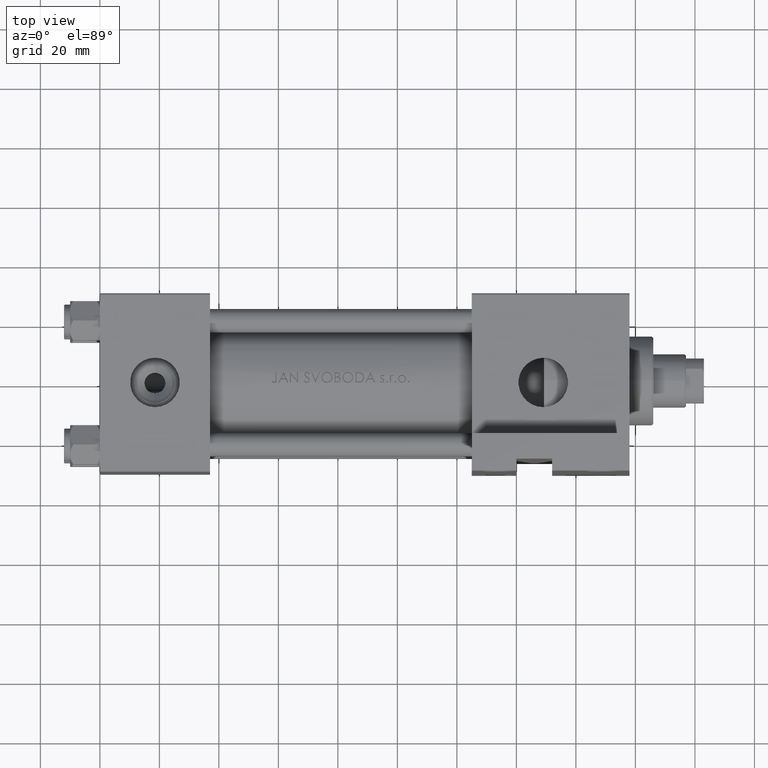
[diagram: clean part render]
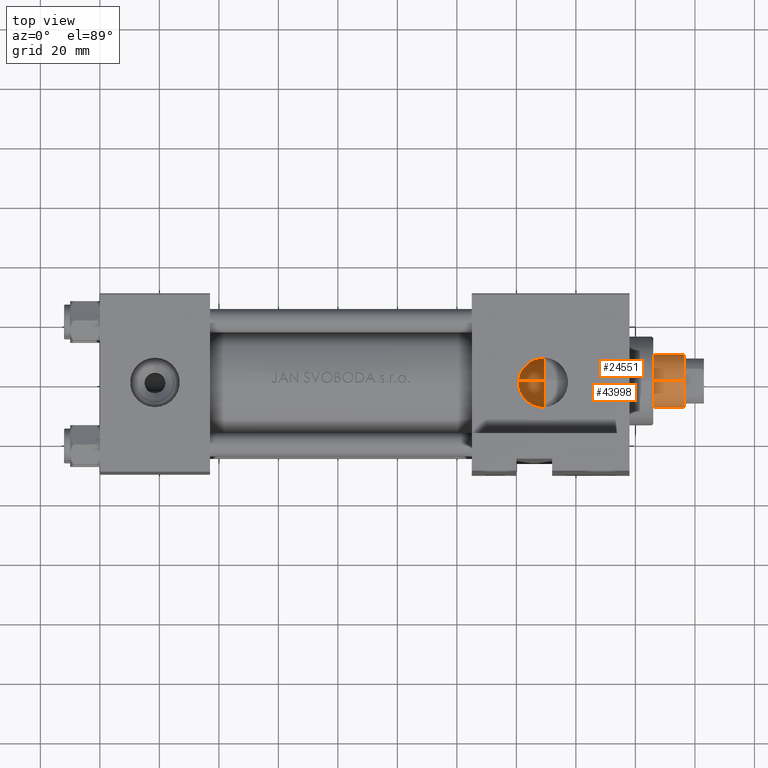
[diagram: same view with one multi-face feature highlighted, each face labeled with its STEP entity id]
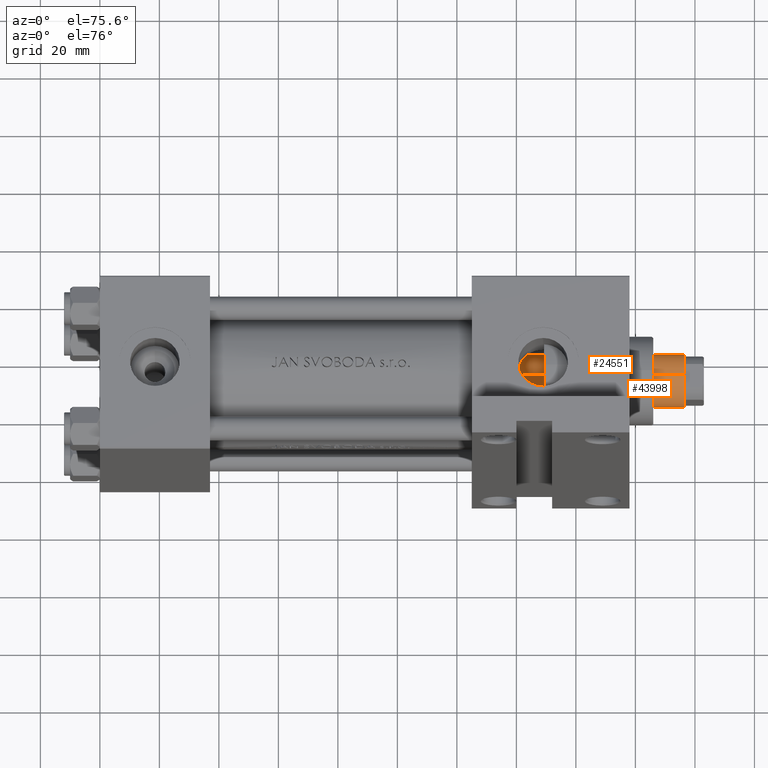
[diagram: same view with one multi-face feature highlighted, each face labeled with its STEP entity id]
A machine part, top view. The highlighted faces form ONE feature: a constant-radius fillet chain: 2 tangent blend faces with common blend radius 9 mm. The faces share edges in the B-rep.
A second angle (auxiliary view) of the same feature is appended — it is thin or edge-on in the first view.
Their STEP definitions:
[1] entity #24551 (Cylinder):
#1725 = CARTESIAN_POINT ( 'NONE',  ( 9.000000000000000000, 1.102182119232617517E-15, 160.0000000000000000 ) ) ;
#4894 = CARTESIAN_POINT ( 'NONE',  ( 0.000000000000000000, 0.000000000000000000, 159.5000000000000853 ) ) ;
#5217 = FACE_OUTER_BOUND ( 'NONE', #9768, .T. ) ;
#6202 = LINE ( 'NONE', #21242, #42846 ) ;
#6590 = CARTESIAN_POINT ( 'NONE',  ( 9.000000000000000000, 1.102182119232617517E-15, 38.00000000000000000 ) ) ;
#8197 = DIRECTION ( 'NONE',  ( 0.000000000000000000, 0.000000000000000000, 1.000000000000000000 ) ) ;
#8501 = ORIENTED_EDGE ( 'NONE', *, *, #24701, .T. ) ;
#9158 = DIRECTION ( 'NONE',  ( -1.000000000000000000, 0.000000000000000000, 0.000000000000000000 ) ) ;
#9768 = EDGE_LOOP ( 'NONE', ( #44859, #27551, #8501, #33771 ) ) ;
#11079 = AXIS2_PLACEMENT_3D ( 'NONE', #4894, #19927, #24097 ) ;
#12069 = VERTEX_POINT ( 'NONE', #36155 ) ;
#12137 = CARTESIAN_POINT ( 'NONE',  ( 0.000000000000000000, 0.000000000000000000, 160.0000000000000000 ) ) ;
#13319 = EDGE_CURVE ( 'NONE', #26142, #14279, #18000, .T. ) ;
#14227 = VECTOR ( 'NONE', #39181, 1000.000000000000000 ) ;
#14279 = VERTEX_POINT ( 'NONE', #6590 ) ;
#15849 = DIRECTION ( 'NONE',  ( 1.000000000000000000, 0.000000000000000000, 0.000000000000000000 ) ) ;
#17302 = DIRECTION ( 'NONE',  ( -0.000000000000000000, -0.000000000000000000, -1.000000000000000000 ) ) ;
#18000 = CIRCLE ( 'NONE', #32184, 9.000000000000000000 ) ;
#19927 = DIRECTION ( 'NONE',  ( 0.000000000000000000, 0.000000000000000000, -1.000000000000000000 ) ) ;
#20029 = AXIS2_PLACEMENT_3D ( 'NONE', #12137, #27653, #9158 ) ;
#20216 = LINE ( 'NONE', #1725, #14227 ) ;
#21242 = CARTESIAN_POINT ( 'NONE',  ( -9.000000000000000000, 0.000000000000000000, 160.0000000000000000 ) ) ;
#24097 = DIRECTION ( 'NONE',  ( 1.000000000000000000, 0.000000000000000000, 0.000000000000000000 ) ) ;
#24551 = ADVANCED_FACE ( 'NONE', ( #5217 ), #35294, .T. ) ;
#24701 = EDGE_CURVE ( 'NONE', #12069, #26142, #6202, .T. ) ;
#26054 = CIRCLE ( 'NONE', #11079, 9.000000000000000000 ) ;
#26142 = VERTEX_POINT ( 'NONE', #42915 ) ;
#27551 = ORIENTED_EDGE ( 'NONE', *, *, #48275, .T. ) ;
#27653 = DIRECTION ( 'NONE',  ( -0.000000000000000000, -0.000000000000000000, -1.000000000000000000 ) ) ;
#32184 = AXIS2_PLACEMENT_3D ( 'NONE', #41957, #8197, #15849 ) ;
#33771 = ORIENTED_EDGE ( 'NONE', *, *, #13319, .T. ) ;
#35294 = CYLINDRICAL_SURFACE ( 'NONE', #20029, 9.000000000000000000 ) ;
#36155 = CARTESIAN_POINT ( 'NONE',  ( -9.000000000000000000, 0.000000000000000000, 159.5000000000000853 ) ) ;
#39181 = DIRECTION ( 'NONE',  ( -0.000000000000000000, -0.000000000000000000, -1.000000000000000000 ) ) ;
#41868 = VERTEX_POINT ( 'NONE', #43214 ) ;
#41957 = CARTESIAN_POINT ( 'NONE',  ( 0.000000000000000000, 0.000000000000000000, 38.00000000000000000 ) ) ;
#42846 = VECTOR ( 'NONE', #17302, 1000.000000000000000 ) ;
#42915 = CARTESIAN_POINT ( 'NONE',  ( -9.000000000000000000, 0.000000000000000000, 38.00000000000000000 ) ) ;
#43214 = CARTESIAN_POINT ( 'NONE',  ( 9.000000000000000000, 1.102182119232617517E-15, 159.5000000000000853 ) ) ;
#43240 = EDGE_CURVE ( 'NONE', #41868, #14279, #20216, .T. ) ;
#44859 = ORIENTED_EDGE ( 'NONE', *, *, #43240, .F. ) ;
#48275 = EDGE_CURVE ( 'NONE', #41868, #12069, #26054, .T. ) ;
[2] entity #43998 (Cylinder):
#1725 = CARTESIAN_POINT ( 'NONE',  ( 9.000000000000000000, 1.102182119232617517E-15, 160.0000000000000000 ) ) ;
#3501 = CIRCLE ( 'NONE', #31036, 9.000000000000000000 ) ;
#4509 = ORIENTED_EDGE ( 'NONE', *, *, #43240, .T. ) ;
#6202 = LINE ( 'NONE', #21242, #42846 ) ;
#6370 = AXIS2_PLACEMENT_3D ( 'NONE', #30809, #45851, #46093 ) ;
#6512 = DIRECTION ( 'NONE',  ( 1.000000000000000000, 0.000000000000000000, 0.000000000000000000 ) ) ;
#6590 = CARTESIAN_POINT ( 'NONE',  ( 9.000000000000000000, 1.102182119232617517E-15, 38.00000000000000000 ) ) ;
#7055 = EDGE_LOOP ( 'NONE', ( #15858, #4509, #39958, #26674 ) ) ;
#12069 = VERTEX_POINT ( 'NONE', #36155 ) ;
#12585 = CYLINDRICAL_SURFACE ( 'NONE', #6370, 9.000000000000000000 ) ;
#14227 = VECTOR ( 'NONE', #39181, 1000.000000000000000 ) ;
#14257 = CIRCLE ( 'NONE', #32372, 9.000000000000000000 ) ;
#14279 = VERTEX_POINT ( 'NONE', #6590 ) ;
#15787 = DIRECTION ( 'NONE',  ( 0.000000000000000000, 0.000000000000000000, -1.000000000000000000 ) ) ;
#15858 = ORIENTED_EDGE ( 'NONE', *, *, #43994, .T. ) ;
#17302 = DIRECTION ( 'NONE',  ( -0.000000000000000000, -0.000000000000000000, -1.000000000000000000 ) ) ;
#18501 = EDGE_CURVE ( 'NONE', #14279, #26142, #3501, .T. ) ;
#20216 = LINE ( 'NONE', #1725, #14227 ) ;
#21242 = CARTESIAN_POINT ( 'NONE',  ( -9.000000000000000000, 0.000000000000000000, 160.0000000000000000 ) ) ;
#24701 = EDGE_CURVE ( 'NONE', #12069, #26142, #6202, .T. ) ;
#26142 = VERTEX_POINT ( 'NONE', #42915 ) ;
#26674 = ORIENTED_EDGE ( 'NONE', *, *, #24701, .F. ) ;
#30809 = CARTESIAN_POINT ( 'NONE',  ( 0.000000000000000000, 0.000000000000000000, 160.0000000000000000 ) ) ;
#31036 = AXIS2_PLACEMENT_3D ( 'NONE', #41002, #33605, #6512 ) ;
#32372 = AXIS2_PLACEMENT_3D ( 'NONE', #34760, #15787, #34998 ) ;
#33605 = DIRECTION ( 'NONE',  ( 0.000000000000000000, 0.000000000000000000, 1.000000000000000000 ) ) ;
#34760 = CARTESIAN_POINT ( 'NONE',  ( 0.000000000000000000, 0.000000000000000000, 159.5000000000000853 ) ) ;
#34998 = DIRECTION ( 'NONE',  ( 1.000000000000000000, 0.000000000000000000, 0.000000000000000000 ) ) ;
#36155 = CARTESIAN_POINT ( 'NONE',  ( -9.000000000000000000, 0.000000000000000000, 159.5000000000000853 ) ) ;
#39181 = DIRECTION ( 'NONE',  ( -0.000000000000000000, -0.000000000000000000, -1.000000000000000000 ) ) ;
#39958 = ORIENTED_EDGE ( 'NONE', *, *, #18501, .T. ) ;
#41002 = CARTESIAN_POINT ( 'NONE',  ( 0.000000000000000000, 0.000000000000000000, 38.00000000000000000 ) ) ;
#41868 = VERTEX_POINT ( 'NONE', #43214 ) ;
#41896 = FACE_OUTER_BOUND ( 'NONE', #7055, .T. ) ;
#42846 = VECTOR ( 'NONE', #17302, 1000.000000000000000 ) ;
#42915 = CARTESIAN_POINT ( 'NONE',  ( -9.000000000000000000, 0.000000000000000000, 38.00000000000000000 ) ) ;
#43214 = CARTESIAN_POINT ( 'NONE',  ( 9.000000000000000000, 1.102182119232617517E-15, 159.5000000000000853 ) ) ;
#43240 = EDGE_CURVE ( 'NONE', #41868, #14279, #20216, .T. ) ;
#43994 = EDGE_CURVE ( 'NONE', #12069, #41868, #14257, .T. ) ;
#43998 = ADVANCED_FACE ( 'NONE', ( #41896 ), #12585, .T. ) ;
#45851 = DIRECTION ( 'NONE',  ( -0.000000000000000000, -0.000000000000000000, -1.000000000000000000 ) ) ;
#46093 = DIRECTION ( 'NONE',  ( -1.000000000000000000, 0.000000000000000000, 0.000000000000000000 ) ) ;